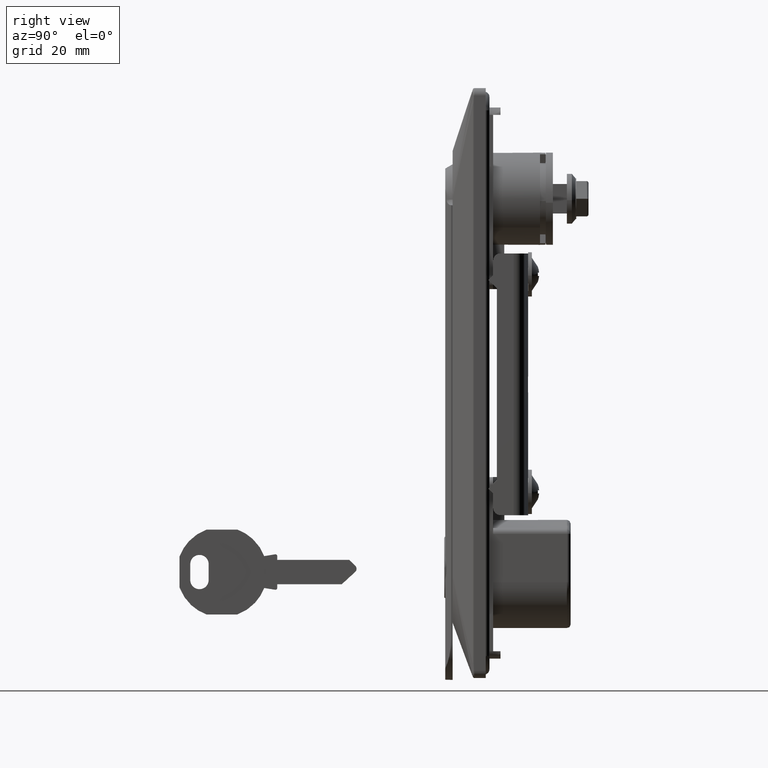
[diagram: clean part render]
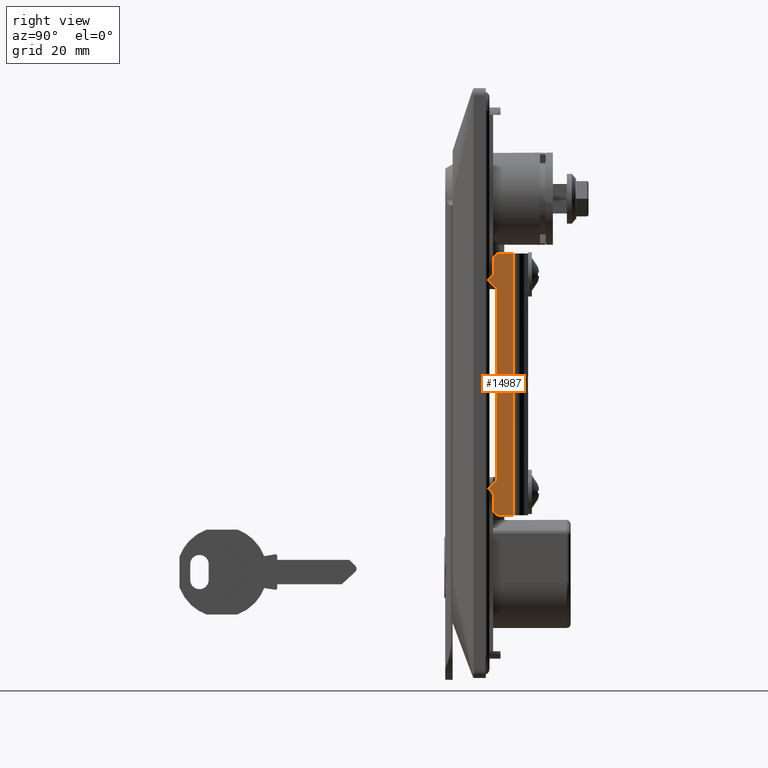
[diagram: same view with one face highlighted and labeled with its STEP entity id]
A machine part, right view. The second image highlights one B-rep face of the part: STEP entity #14987.
In plain terms, the highlighted face is a freeform B-spline surface patch.
Its self-contained STEP definition (entity closure, byte-faithful):
#14734=CARTESIAN_POINT('',(17.500000831205611,3.000000142492387,-76.346610047553497));
#14735=VERTEX_POINT('',#14734);
#14741=CARTESIAN_POINT('',(17.500000831205611,3.000000142492387,-24.346607577686100));
#14742=VERTEX_POINT('',#14741);
#14743=CARTESIAN_POINT('',(17.500000831205611,3.000000142492387,-24.346607577686100));
#14744=CARTESIAN_POINT('',(17.500000831205611,3.000000142492387,-76.346610047553497));
#14745=QUASI_UNIFORM_CURVE('',1,(#14743,#14744),.UNSPECIFIED.,.F.,.U.);
#14746=EDGE_CURVE('',#14742,#14735,#14745,.T.);
#14770=CARTESIAN_POINT('',(17.500000831205611,0.700000033248190,-22.046607468442001));
#14771=VERTEX_POINT('',#14770);
#14777=CARTESIAN_POINT('',(17.500000831205611,2.000000094994877,-20.746607406695301));
#14778=VERTEX_POINT('',#14777);
#14779=CARTESIAN_POINT('',(17.500000831205611,2.000000094994877,-20.746607406695301));
#14780=CARTESIAN_POINT('',(17.500000831205611,0.700000033248190,-22.046607468442001));
#14781=QUASI_UNIFORM_CURVE('',1,(#14779,#14780),.UNSPECIFIED.,.F.,.U.);
#14782=EDGE_CURVE('',#14778,#14771,#14781,.T.);
#14797=CARTESIAN_POINT('',(17.500000831205611,2.000000094994877,-16.846607126460398));
#14798=VERTEX_POINT('',#14797);
#14799=CARTESIAN_POINT('',(17.500000831205611,2.000000094994877,-16.846607126460398));
#14800=CARTESIAN_POINT('',(17.500000831205611,2.000000094994877,-20.746607406695301));
#14801=QUASI_UNIFORM_CURVE('',1,(#14799,#14800),.UNSPECIFIED.,.F.,.U.);
#14802=EDGE_CURVE('',#14798,#14778,#14801,.T.);
#14831=CARTESIAN_POINT('',(17.500000831205611,0.700000033248190,-22.046607468442001));
#14832=CARTESIAN_POINT('',(17.500000831205611,3.000000142492387,-24.346607577686100));
#14833=QUASI_UNIFORM_CURVE('',1,(#14831,#14832),.UNSPECIFIED.,.F.,.U.);
#14834=EDGE_CURVE('',#14771,#14742,#14833,.T.);
#14852=CARTESIAN_POINT('',(17.500000831205611,0.700000033248190,-78.646610156797706));
#14853=VERTEX_POINT('',#14852);
#14859=CARTESIAN_POINT('',(17.500000831205611,3.000000142492387,-76.346610047553497));
#14860=CARTESIAN_POINT('',(17.500000831205611,0.700000033248190,-78.646610156797706));
#14861=QUASI_UNIFORM_CURVE('',1,(#14859,#14860),.UNSPECIFIED.,.F.,.U.);
#14862=EDGE_CURVE('',#14735,#14853,#14861,.T.);
#14880=CARTESIAN_POINT('',(17.500000831205611,2.000000094994877,-79.946610218544407));
#14881=VERTEX_POINT('',#14880);
#14887=CARTESIAN_POINT('',(17.500000831205611,0.700000033248190,-78.646610156797706));
#14888=CARTESIAN_POINT('',(17.500000831205611,2.000000094994877,-79.946610218544407));
#14889=QUASI_UNIFORM_CURVE('',1,(#14887,#14888),.UNSPECIFIED.,.F.,.U.);
#14890=EDGE_CURVE('',#14853,#14881,#14889,.T.);
#14908=CARTESIAN_POINT('',(17.500000831205611,2.000000094994877,-83.846610498779583));
#14909=VERTEX_POINT('',#14908);
#14915=CARTESIAN_POINT('',(17.500000831205611,2.000000094994877,-79.946610218544407));
#14916=CARTESIAN_POINT('',(17.500000831205611,2.000000094994877,-83.846610498779583));
#14917=QUASI_UNIFORM_CURVE('',1,(#14915,#14916),.UNSPECIFIED.,.F.,.U.);
#14918=EDGE_CURVE('',#14881,#14909,#14917,.T.);
#14924=CARTESIAN_POINT('',(17.499999976251299,0.358996298075674,-89.393060529615170));
#14925=CARTESIAN_POINT('',(17.499999976251299,0.358996298075674,-11.300155191256300));
#14926=CARTESIAN_POINT('',(17.499999976251299,7.867905821489965,-89.393060529615170));
#14927=CARTESIAN_POINT('',(17.499999976251299,7.867905821489965,-11.300155191256300));
#14928=B_SPLINE_SURFACE_WITH_KNOTS('',1,1,((#14924,#14926),(#14925,#14927)),.UNSPECIFIED.,.F.,.F.,.U.,(2,2),(2,2),(0.0,78.092905338358875),(0.0,7.508909523414292),.UNSPECIFIED.);
#14929=ORIENTED_EDGE('',*,*,#14918,.T.);
#14930=CARTESIAN_POINT('',(17.499999976251299,4.000000094994877,-85.846610498779597));
#14931=VERTEX_POINT('',#14930);
#14932=CARTESIAN_POINT('',(17.500000831205611,2.000000094994877,-83.846610498779583));
#14933=CARTESIAN_POINT('',(17.499999976251306,2.000000094994877,-85.846610498779597));
#14934=CARTESIAN_POINT('',(17.499999976251299,4.000000094994877,-85.846610498779597));
#14942=(BOUNDED_CURVE()B_SPLINE_CURVE(2,(#14932,#14933,#14934),.UNSPECIFIED.,.F.,.U.)CURVE()GEOMETRIC_REPRESENTATION_ITEM()QUASI_UNIFORM_CURVE()RATIONAL_B_SPLINE_CURVE((1.0,0.707106781186548,1.0))REPRESENTATION_ITEM(''));
#14943=EDGE_CURVE('',#14909,#14931,#14942,.T.);
#14944=ORIENTED_EDGE('',*,*,#14943,.T.);
#14945=CARTESIAN_POINT('',(17.499999976251299,7.526901903205672,-85.846610498779597));
#14946=VERTEX_POINT('',#14945);
#14947=CARTESIAN_POINT('',(17.499999976251299,4.000000094994877,-85.846610498779597));
#14948=CARTESIAN_POINT('',(17.499999976251299,7.526901903205672,-85.846610498779597));
#14949=QUASI_UNIFORM_CURVE('',1,(#14947,#14948),.UNSPECIFIED.,.F.,.U.);
#14950=EDGE_CURVE('',#14931,#14946,#14949,.T.);
#14951=ORIENTED_EDGE('',*,*,#14950,.T.);
#14952=CARTESIAN_POINT('',(17.499999976251299,7.526901903205672,-14.846607126460350));
#14953=VERTEX_POINT('',#14952);
#14954=CARTESIAN_POINT('',(17.499999976251299,7.526901903205672,-14.846607126460350));
#14955=CARTESIAN_POINT('',(17.499999976251299,7.526901903205672,-85.846610498779597));
#14956=QUASI_UNIFORM_CURVE('',1,(#14954,#14955),.UNSPECIFIED.,.F.,.U.);
#14957=EDGE_CURVE('',#14953,#14946,#14956,.T.);
#14958=ORIENTED_EDGE('',*,*,#14957,.F.);
#14959=CARTESIAN_POINT('',(17.499999976251299,4.000000094994877,-14.846607126460350));
#14960=VERTEX_POINT('',#14959);
#14961=CARTESIAN_POINT('',(17.499999976251299,4.000000094994877,-14.846607126460350));
#14962=CARTESIAN_POINT('',(17.499999976251299,7.526901903205672,-14.846607126460350));
#14963=QUASI_UNIFORM_CURVE('',1,(#14961,#14962),.UNSPECIFIED.,.F.,.U.);
#14964=EDGE_CURVE('',#14960,#14953,#14963,.T.);
#14965=ORIENTED_EDGE('',*,*,#14964,.F.);
#14966=CARTESIAN_POINT('',(17.499999976251299,4.000000094994877,-14.846607126460400));
#14967=CARTESIAN_POINT('',(17.499999976251306,2.000000094994877,-14.846607126460411));
#14968=CARTESIAN_POINT('',(17.499999976251299,2.000000094994877,-16.846607126460398));
#14976=(BOUNDED_CURVE()B_SPLINE_CURVE(2,(#14966,#14967,#14968),.UNSPECIFIED.,.F.,.U.)CURVE()GEOMETRIC_REPRESENTATION_ITEM()QUASI_UNIFORM_CURVE()RATIONAL_B_SPLINE_CURVE((1.0,0.707106781186548,1.0))REPRESENTATION_ITEM(''));
#14977=EDGE_CURVE('',#14960,#14798,#14976,.T.);
#14978=ORIENTED_EDGE('',*,*,#14977,.T.);
#14979=ORIENTED_EDGE('',*,*,#14802,.T.);
#14980=ORIENTED_EDGE('',*,*,#14782,.T.);
#14981=ORIENTED_EDGE('',*,*,#14834,.T.);
#14982=ORIENTED_EDGE('',*,*,#14746,.T.);
#14983=ORIENTED_EDGE('',*,*,#14862,.T.);
#14984=ORIENTED_EDGE('',*,*,#14890,.T.);
#14985=EDGE_LOOP('',(#14929,#14944,#14951,#14958,#14965,#14978,#14979,#14980,#14981,#14982,#14983,#14984));
#14986=FACE_OUTER_BOUND('',#14985,.T.);
#14987=ADVANCED_FACE('',(#14986),#14928,.F.);